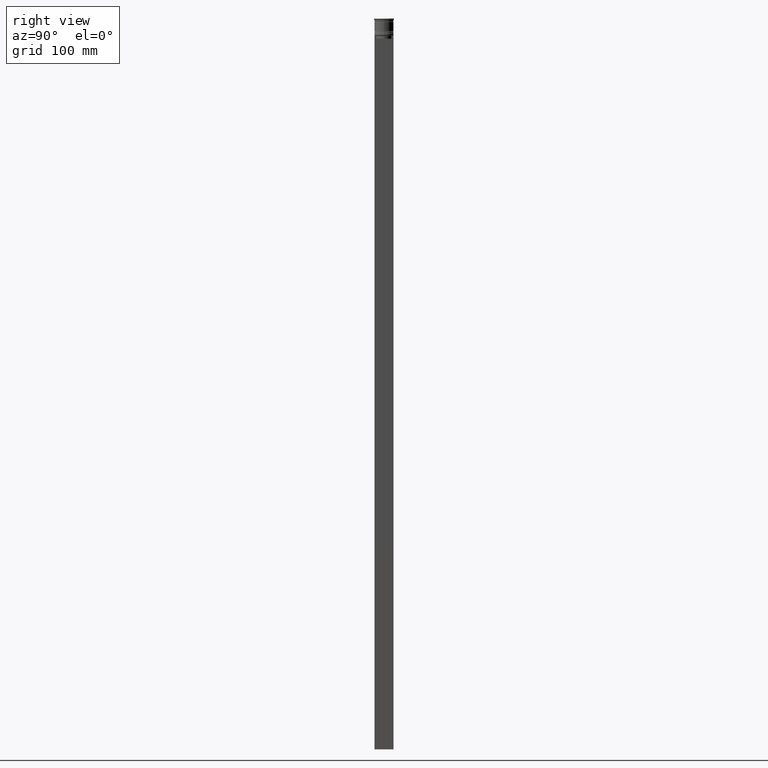
[diagram: clean part render]
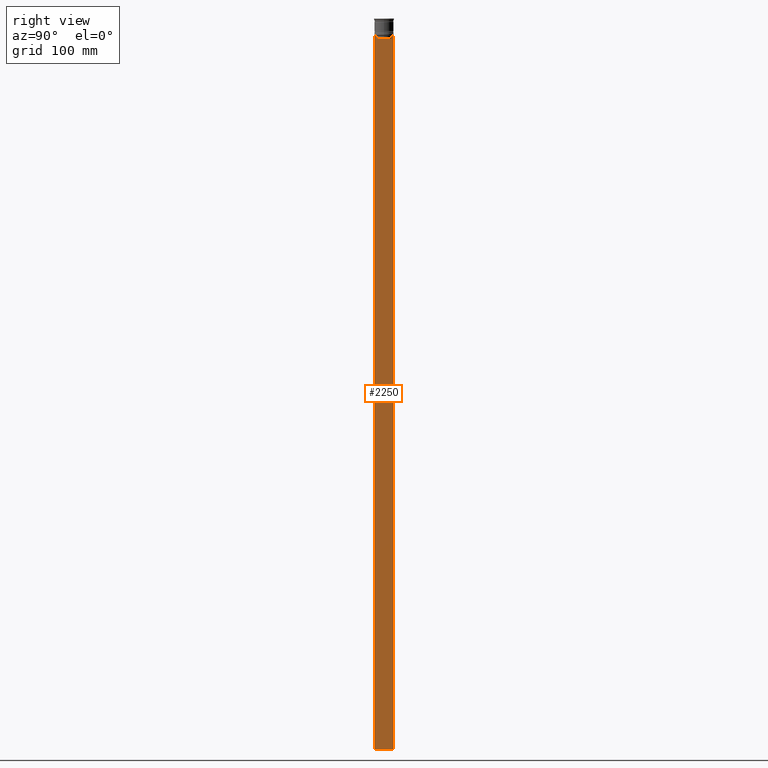
[diagram: same view with one face highlighted and labeled with its STEP entity id]
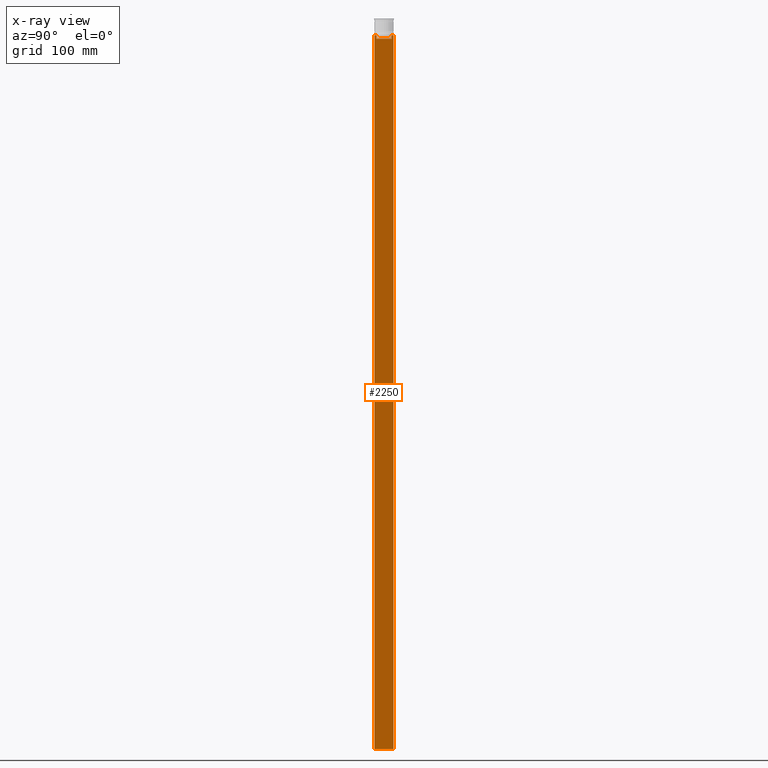
[diagram: x-ray of the same camera — body ghosted, the highlighted face saturated]
A machine part, right view. The second image highlights one B-rep face of the part: STEP entity #2250.
The next image is the same camera in x-ray: the body ghosted, the highlighted face saturated — about 0% of this face is hidden behind the body in this view.
In plain terms, the highlighted planar face has unit normal (-1, 0, 0).
Its self-contained STEP definition (entity closure, byte-faithful):
#19 = DIRECTION ( 'NONE',  ( 0.000000000000000000, 0.000000000000000000, -1.000000000000000000 ) ) ;
#24 = VERTEX_POINT ( 'NONE', #2455 ) ;
#40 = CARTESIAN_POINT ( 'NONE',  ( 0.5000000000000001110, 6.881860213634098500, -14.00000000000000178 ) ) ;
#74 = VERTEX_POINT ( 'NONE', #2060 ) ;
#80 = CARTESIAN_POINT ( 'NONE',  ( 0.5000000000000001110, 6.881860213634098500, -14.00000000000000178 ) ) ;
#81 = LINE ( 'NONE', #276, #698 ) ;
#105 = CARTESIAN_POINT ( 'NONE',  ( 0.5000000000000001110, 6.380438856379708312, 0.000000000000000000 ) ) ;
#109 = EDGE_CURVE ( 'NONE', #505, #2375, #758, .T. ) ;
#203 = PLANE ( 'NONE',  #2350 ) ;
#223 = CARTESIAN_POINT ( 'NONE',  ( 0.5000000000000001110, -8.000000000000003553, -614.0000000000000000 ) ) ;
#228 = VERTEX_POINT ( 'NONE', #2141 ) ;
#233 = EDGE_CURVE ( 'NONE', #1186, #505, #1964, .T. ) ;
#243 = CARTESIAN_POINT ( 'NONE',  ( 0.5000000000000001110, -6.380438856379708312, -17.00000000000000000 ) ) ;
#276 = CARTESIAN_POINT ( 'NONE',  ( 0.5000000000000001110, -6.380438856379708312, 0.000000000000000000 ) ) ;
#300 = DIRECTION ( 'NONE',  ( 0.000000000000000000, -1.000000000000000000, 0.000000000000000000 ) ) ;
#326 = EDGE_CURVE ( 'NONE', #1481, #842, #2232, .T. ) ;
#379 = VECTOR ( 'NONE', #2378, 1000.000000000000000 ) ;
#388 = CARTESIAN_POINT ( 'NONE',  ( 0.5000000000000001110, 6.714736947114692711, -14.16668390704818847 ) ) ;
#393 = ORIENTED_EDGE ( 'NONE', *, *, #233, .T. ) ;
#434 = CARTESIAN_POINT ( 'NONE',  ( 0.5000000000000001110, -8.000000000000003553, 2.031219541881394530 ) ) ;
#485 = CARTESIAN_POINT ( 'NONE',  ( 0.5000000000000001110, -6.547597841511247019, -14.33335192438652150 ) ) ;
#500 = VECTOR ( 'NONE', #2289, 1000.000000000000000 ) ;
#505 = VERTEX_POINT ( 'NONE', #2102 ) ;
#569 = B_SPLINE_CURVE_WITH_KNOTS ( 'NONE', 3,
 ( #665, #485, #1443, #1411 ),
 .UNSPECIFIED., .F., .F.,
 ( 4, 4 ),
 ( 0.02996184199614751464, 0.03067452609193705923 ),
 .UNSPECIFIED. ) ;
#576 = CARTESIAN_POINT ( 'NONE',  ( 0.5000000000000001110, 6.547597841304911626, -14.33335192459222718 ) ) ;
#647 = ORIENTED_EDGE ( 'NONE', *, *, #1114, .T. ) ;
#665 = CARTESIAN_POINT ( 'NONE',  ( 0.5000000000000001110, -6.380438856379708312, -14.50000000000000000 ) ) ;
#668 = DIRECTION ( 'NONE',  ( -0.000000000000000000, -0.000000000000000000, 1.000000000000000000 ) ) ;
#698 = VECTOR ( 'NONE', #668, 1000.000000000000000 ) ;
#758 = LINE ( 'NONE', #1530, #500 ) ;
#777 = B_SPLINE_CURVE_WITH_KNOTS ( 'NONE', 3,
 ( #40, #388, #576, #2284 ),
 .UNSPECIFIED., .F., .F.,
 ( 4, 4 ),
 ( 0.01172465562756038263, 0.01243276816391822651 ),
 .UNSPECIFIED. ) ;
#779 = VECTOR ( 'NONE', #2021, 1000.000000000000000 ) ;
#818 = CARTESIAN_POINT ( 'NONE',  ( 0.5000000000000001110, -8.000000000000003553, -14.00000000000000178 ) ) ;
#827 = VERTEX_POINT ( 'NONE', #840 ) ;
#831 = CARTESIAN_POINT ( 'NONE',  ( 0.5000000000000001110, 7.999999999999996447, 2.031219541881394530 ) ) ;
#837 = EDGE_CURVE ( 'NONE', #1233, #74, #81, .T. ) ;
#840 = CARTESIAN_POINT ( 'NONE',  ( 0.5000000000000001110, -8.000000000000003553, -14.00000000000000178 ) ) ;
#842 = VERTEX_POINT ( 'NONE', #1431 ) ;
#849 = EDGE_CURVE ( 'NONE', #24, #1233, #1982, .T. ) ;
#874 = ORIENTED_EDGE ( 'NONE', *, *, #326, .T. ) ;
#954 = ORIENTED_EDGE ( 'NONE', *, *, #2438, .T. ) ;
#957 = VERTEX_POINT ( 'NONE', #2273 ) ;
#971 = FACE_OUTER_BOUND ( 'NONE', #2312, .T. ) ;
#1023 = CARTESIAN_POINT ( 'NONE',  ( 0.5000000000000001110, -8.000000000000003553, -14.00000000000000178 ) ) ;
#1026 = DIRECTION ( 'NONE',  ( 0.000000000000000000, 0.000000000000000000, -1.000000000000000000 ) ) ;
#1053 = VECTOR ( 'NONE', #300, 1000.000000000000000 ) ;
#1055 = ORIENTED_EDGE ( 'NONE', *, *, #2321, .T. ) ;
#1060 = ORIENTED_EDGE ( 'NONE', *, *, #849, .T. ) ;
#1061 = CARTESIAN_POINT ( 'NONE',  ( 0.5000000000000001110, 7.999999999999996447, -14.00000000000000178 ) ) ;
#1114 = EDGE_CURVE ( 'NONE', #2375, #957, #777, .T. ) ;
#1186 = VERTEX_POINT ( 'NONE', #1061 ) ;
#1233 = VERTEX_POINT ( 'NONE', #243 ) ;
#1241 = ORIENTED_EDGE ( 'NONE', *, *, #837, .T. ) ;
#1273 = DIRECTION ( 'NONE',  ( 0.000000000000000000, 1.000000000000000000, 0.000000000000000000 ) ) ;
#1345 = VECTOR ( 'NONE', #2311, 1000.000000000000000 ) ;
#1360 = DIRECTION ( 'NONE',  ( 0.000000000000000000, -1.000000000000000000, 0.000000000000000000 ) ) ;
#1411 = CARTESIAN_POINT ( 'NONE',  ( 0.5000000000000001110, -6.881860213634098500, -14.00000000000000178 ) ) ;
#1420 = VECTOR ( 'NONE', #1360, 1000.000000000000000 ) ;
#1421 = CARTESIAN_POINT ( 'NONE',  ( 0.5000000000000001110, -8.000000000000003553, -14.00000000000000178 ) ) ;
#1431 = CARTESIAN_POINT ( 'NONE',  ( 0.5000000000000001110, -7.884161337770806632, -14.00000000000000178 ) ) ;
#1439 = EDGE_CURVE ( 'NONE', #2283, #228, #2416, .T. ) ;
#1443 = CARTESIAN_POINT ( 'NONE',  ( 0.5000000000000001110, -6.714736947305993908, -14.16668390685738821 ) ) ;
#1481 = VERTEX_POINT ( 'NONE', #1953 ) ;
#1514 = VECTOR ( 'NONE', #1026, 1000.000000000000000 ) ;
#1530 = CARTESIAN_POINT ( 'NONE',  ( 0.5000000000000001110, -8.000000000000003553, -14.00000000000000178 ) ) ;
#1549 = LINE ( 'NONE', #434, #1924 ) ;
#1581 = EDGE_CURVE ( 'NONE', #842, #827, #2003, .T. ) ;
#1717 = VECTOR ( 'NONE', #1273, 1000.000000000000000 ) ;
#1755 = CARTESIAN_POINT ( 'NONE',  ( 0.5000000000000001110, -8.000000000000003553, 2.031219541881394530 ) ) ;
#1765 = ORIENTED_EDGE ( 'NONE', *, *, #1581, .T. ) ;
#1861 = ORIENTED_EDGE ( 'NONE', *, *, #109, .T. ) ;
#1924 = VECTOR ( 'NONE', #19, 1000.000000000000000 ) ;
#1926 = EDGE_CURVE ( 'NONE', #1186, #228, #2320, .T. ) ;
#1953 = CARTESIAN_POINT ( 'NONE',  ( 0.5000000000000001110, -6.881860213634098500, -14.00000000000000178 ) ) ;
#1964 = LINE ( 'NONE', #818, #1420 ) ;
#1973 = ORIENTED_EDGE ( 'NONE', *, *, #2414, .T. ) ;
#1982 = LINE ( 'NONE', #2028, #1053 ) ;
#2003 = LINE ( 'NONE', #1023, #379 ) ;
#2021 = DIRECTION ( 'NONE',  ( 0.000000000000000000, -1.000000000000000000, 0.000000000000000000 ) ) ;
#2028 = CARTESIAN_POINT ( 'NONE',  ( 0.5000000000000001110, 6.399999999999999467, -17.00000000000000000 ) ) ;
#2037 = ORIENTED_EDGE ( 'NONE', *, *, #1926, .F. ) ;
#2060 = CARTESIAN_POINT ( 'NONE',  ( 0.5000000000000001110, -6.380438856379708312, -14.50000000000000000 ) ) ;
#2102 = CARTESIAN_POINT ( 'NONE',  ( 0.5000000000000001110, 7.884161337770806632, -14.00000000000000178 ) ) ;
#2135 = DIRECTION ( 'NONE',  ( -1.000000000000000000, 0.000000000000000000, 0.000000000000000000 ) ) ;
#2141 = CARTESIAN_POINT ( 'NONE',  ( 0.5000000000000001110, 7.999999999999996447, -614.0000000000000000 ) ) ;
#2224 = CARTESIAN_POINT ( 'NONE',  ( 0.5000000000000001110, -8.000000000000003553, -614.0000000000000000 ) ) ;
#2226 = LINE ( 'NONE', #105, #1514 ) ;
#2232 = LINE ( 'NONE', #1421, #779 ) ;
#2250 = ADVANCED_FACE ( 'NONE', ( #971 ), #203, .F. ) ;
#2273 = CARTESIAN_POINT ( 'NONE',  ( 0.5000000000000001110, 6.380438856379708312, -14.50000000000000000 ) ) ;
#2283 = VERTEX_POINT ( 'NONE', #223 ) ;
#2284 = CARTESIAN_POINT ( 'NONE',  ( 0.5000000000000001110, 6.380438856379708312, -14.50000000000000000 ) ) ;
#2289 = DIRECTION ( 'NONE',  ( 0.000000000000000000, -1.000000000000000000, 0.000000000000000000 ) ) ;
#2294 = DIRECTION ( 'NONE',  ( 0.000000000000000000, 0.000000000000000000, 1.000000000000000000 ) ) ;
#2311 = DIRECTION ( 'NONE',  ( 0.000000000000000000, 0.000000000000000000, -1.000000000000000000 ) ) ;
#2312 = EDGE_LOOP ( 'NONE', ( #1861, #647, #1973, #1060, #1241, #954, #874, #1765, #1055, #2456, #2037, #393 ) ) ;
#2320 = LINE ( 'NONE', #831, #1345 ) ;
#2321 = EDGE_CURVE ( 'NONE', #827, #2283, #1549, .T. ) ;
#2350 = AXIS2_PLACEMENT_3D ( 'NONE', #1755, #2135, #2294 ) ;
#2375 = VERTEX_POINT ( 'NONE', #80 ) ;
#2378 = DIRECTION ( 'NONE',  ( 0.000000000000000000, -1.000000000000000000, 0.000000000000000000 ) ) ;
#2414 = EDGE_CURVE ( 'NONE', #957, #24, #2226, .T. ) ;
#2416 = LINE ( 'NONE', #2224, #1717 ) ;
#2438 = EDGE_CURVE ( 'NONE', #74, #1481, #569, .T. ) ;
#2455 = CARTESIAN_POINT ( 'NONE',  ( 0.5000000000000001110, 6.380438856379708312, -17.00000000000000000 ) ) ;
#2456 = ORIENTED_EDGE ( 'NONE', *, *, #1439, .T. ) ;